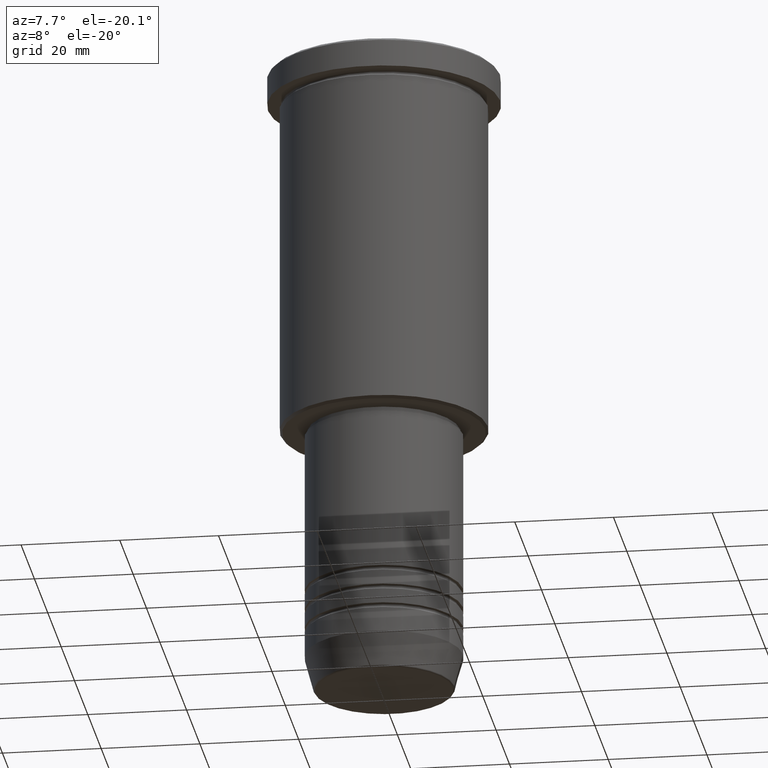
[diagram: clean part render]
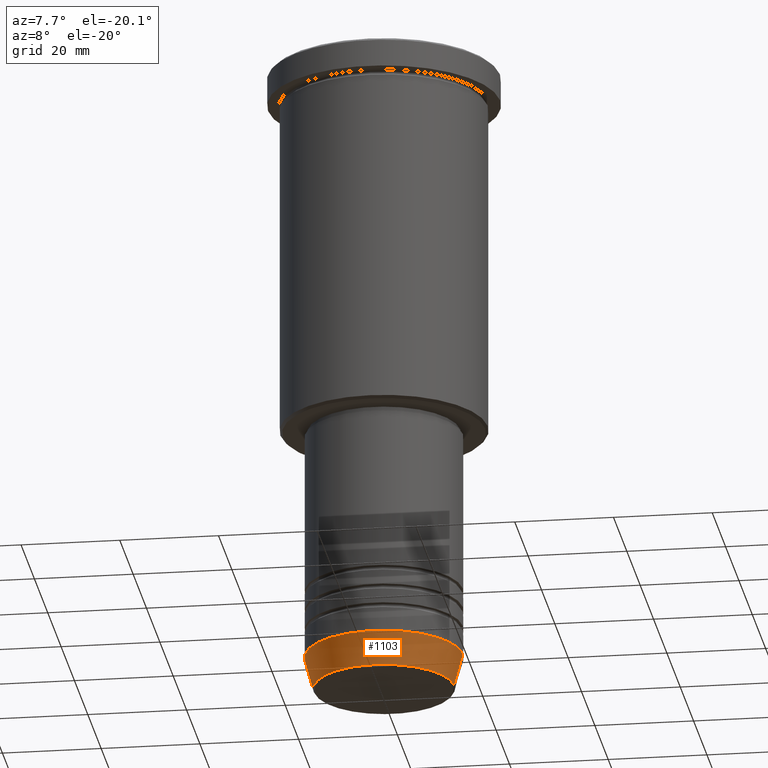
[diagram: same view with one face highlighted and labeled with its STEP entity id]
A machine part, auxiliary view. The second image highlights one B-rep face of the part: STEP entity #1103.
In plain terms, the highlighted conical surface has half-angle 15 deg.
Its self-contained STEP definition (entity closure, byte-faithful):
#15 = DIRECTION ( 'NONE',  ( -0.000000000000000000, -0.000000000000000000, 1.000000000000000000 ) ) ;
#25 = CARTESIAN_POINT ( 'NONE',  ( 16.00000000000000000, 0.000000000000000000, -124.0000000000000000 ) ) ;
#26 = CONICAL_SURFACE ( 'NONE', #459, 16.00000000000000000, 0.2617993877991500740 ) ;
#33 = ORIENTED_EDGE ( 'NONE', *, *, #1109, .F. ) ;
#178 = VECTOR ( 'NONE', #290, 1000.000000000000000 ) ;
#225 = CARTESIAN_POINT ( 'NONE',  ( 16.00000000000000000, 0.000000000000000000, -124.0000000000000000 ) ) ;
#235 = EDGE_CURVE ( 'NONE', #254, #1001, #1038, .T. ) ;
#254 = VERTEX_POINT ( 'NONE', #282 ) ;
#258 = VERTEX_POINT ( 'NONE', #25 ) ;
#282 = CARTESIAN_POINT ( 'NONE',  ( -14.22365507213718949, 1.850665122131323731E-15, -130.6294095225512706 ) ) ;
#290 = DIRECTION ( 'NONE',  ( -0.2588190451025213501, 3.169619151431772337E-17, 0.9659258262890680902 ) ) ;
#295 = EDGE_CURVE ( 'NONE', #1001, #258, #493, .T. ) ;
#344 = ORIENTED_EDGE ( 'NONE', *, *, #1029, .F. ) ;
#376 = DIRECTION ( 'NONE',  ( -0.000000000000000000, -0.000000000000000000, 1.000000000000000000 ) ) ;
#443 = AXIS2_PLACEMENT_3D ( 'NONE', #1121, #660, #834 ) ;
#459 = AXIS2_PLACEMENT_3D ( 'NONE', #465, #15, #1020 ) ;
#465 = CARTESIAN_POINT ( 'NONE',  ( 0.000000000000000000, 0.000000000000000000, -124.0000000000000000 ) ) ;
#493 = LINE ( 'NONE', #225, #547 ) ;
#496 = VERTEX_POINT ( 'NONE', #1017 ) ;
#547 = VECTOR ( 'NONE', #865, 1000.000000000000000 ) ;
#600 = ORIENTED_EDGE ( 'NONE', *, *, #235, .T. ) ;
#648 = DIRECTION ( 'NONE',  ( 1.000000000000000000, 0.000000000000000000, 0.000000000000000000 ) ) ;
#660 = DIRECTION ( 'NONE',  ( -0.000000000000000000, -0.000000000000000000, 1.000000000000000000 ) ) ;
#834 = DIRECTION ( 'NONE',  ( 1.000000000000000000, 0.000000000000000000, 0.000000000000000000 ) ) ;
#865 = DIRECTION ( 'NONE',  ( 0.2588190451025213501, 0.000000000000000000, 0.9659258262890680902 ) ) ;
#887 = AXIS2_PLACEMENT_3D ( 'NONE', #932, #376, #648 ) ;
#908 = LINE ( 'NONE', #1146, #178 ) ;
#932 = CARTESIAN_POINT ( 'NONE',  ( 0.000000000000000000, 0.000000000000000000, -124.0000000000000000 ) ) ;
#979 = CARTESIAN_POINT ( 'NONE',  ( 14.22365507213718949, 0.000000000000000000, -130.6294095225512706 ) ) ;
#1001 = VERTEX_POINT ( 'NONE', #979 ) ;
#1013 = FACE_OUTER_BOUND ( 'NONE', #1039, .T. ) ;
#1017 = CARTESIAN_POINT ( 'NONE',  ( -16.00000000000000000, 1.959434878635765131E-15, -124.0000000000000000 ) ) ;
#1020 = DIRECTION ( 'NONE',  ( 1.000000000000000000, 0.000000000000000000, 0.000000000000000000 ) ) ;
#1021 = CIRCLE ( 'NONE', #887, 16.00000000000000000 ) ;
#1029 = EDGE_CURVE ( 'NONE', #254, #496, #908, .T. ) ;
#1038 = CIRCLE ( 'NONE', #443, 14.22365507213718949 ) ;
#1039 = EDGE_LOOP ( 'NONE', ( #344, #600, #1120, #33 ) ) ;
#1103 = ADVANCED_FACE ( 'NONE', ( #1013 ), #26, .T. ) ;
#1109 = EDGE_CURVE ( 'NONE', #496, #258, #1021, .T. ) ;
#1120 = ORIENTED_EDGE ( 'NONE', *, *, #295, .T. ) ;
#1121 = CARTESIAN_POINT ( 'NONE',  ( 0.000000000000000000, 0.000000000000000000, -130.6294095225512706 ) ) ;
#1146 = CARTESIAN_POINT ( 'NONE',  ( -16.00000000000000000, 1.959434878635765131E-15, -124.0000000000000000 ) ) ;